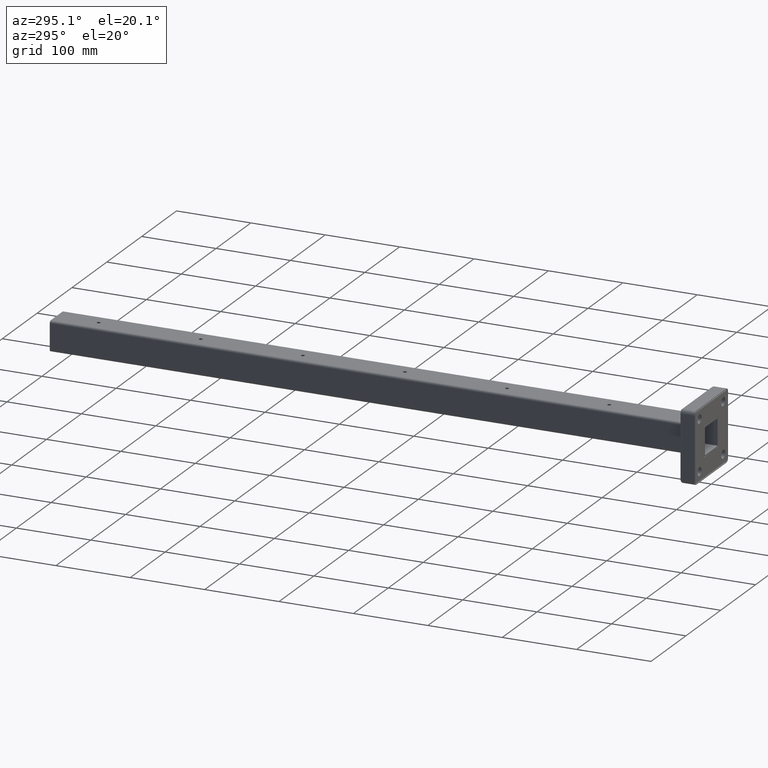
[diagram: clean part render]
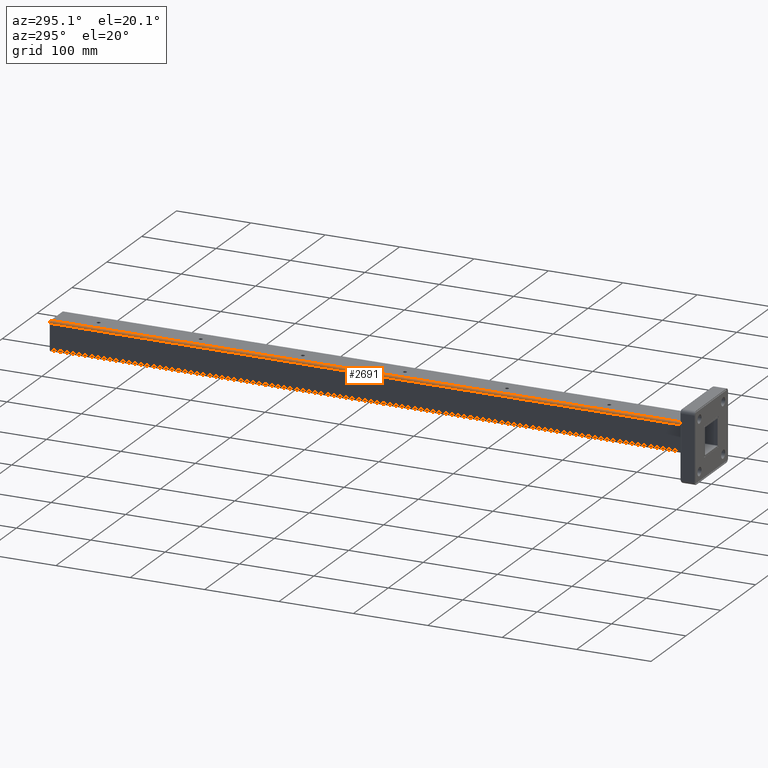
[diagram: same view with one face highlighted and labeled with its STEP entity id]
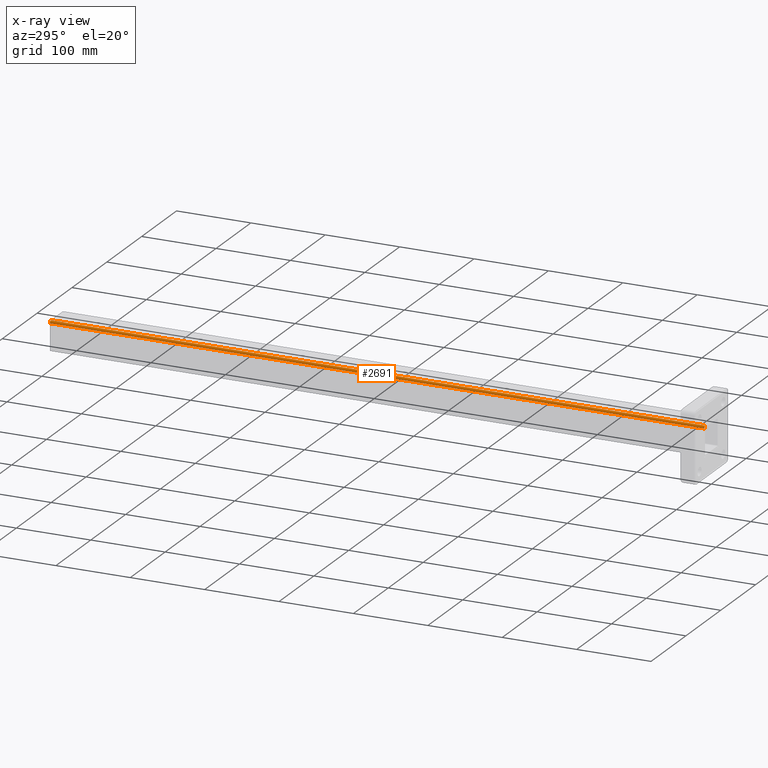
[diagram: x-ray of the same camera — body ghosted, the highlighted face saturated]
A machine part, auxiliary view. The second image highlights one B-rep face of the part: STEP entity #2691.
The next image is the same camera in x-ray: the body ghosted, the highlighted face saturated — about 0% of this face is hidden behind the body in this view.
In plain terms, the highlighted cylindrical surface (edge-blend (fillet) strip) has radius 3 mm, axis along (0, -1, 0).
Its self-contained STEP definition (entity closure, byte-faithful):
#45 = CARTESIAN_POINT ( 'NONE',  ( -19.99999999999999600, 880.0000000000000000, 17.00000000000000000 ) ) ;
#61 = ORIENTED_EDGE ( 'NONE', *, *, #1255, .F. ) ;
#237 = AXIS2_PLACEMENT_3D ( 'NONE', #3928, #1495, #2408 ) ;
#243 = AXIS2_PLACEMENT_3D ( 'NONE', #1009, #3196, #1663 ) ;
#490 = CARTESIAN_POINT ( 'NONE',  ( -16.99999999999999600, 880.0000000000000000, 19.99999999999999600 ) ) ;
#564 = VERTEX_POINT ( 'NONE', #814 ) ;
#632 = VECTOR ( 'NONE', #2880, 1000.000000000000000 ) ;
#663 = EDGE_CURVE ( 'NONE', #1210, #564, #3443, .T. ) ;
#814 = CARTESIAN_POINT ( 'NONE',  ( -19.99999999999999600, 0.0000000000000000000, 17.00000000000000000 ) ) ;
#825 = CARTESIAN_POINT ( 'NONE',  ( -16.99999999999999600, 880.0000000000000000, 19.99999999999999600 ) ) ;
#834 = CARTESIAN_POINT ( 'NONE',  ( -16.99999999999999600, 0.0000000000000000000, 19.99999999999999600 ) ) ;
#954 = LINE ( 'NONE', #490, #632 ) ;
#1009 = CARTESIAN_POINT ( 'NONE',  ( -16.99999999999999600, 880.0000000000000000, 16.99999999999999600 ) ) ;
#1210 = VERTEX_POINT ( 'NONE', #834 ) ;
#1239 = ORIENTED_EDGE ( 'NONE', *, *, #663, .F. ) ;
#1255 = EDGE_CURVE ( 'NONE', #564, #2117, #1702, .T. ) ;
#1355 = ORIENTED_EDGE ( 'NONE', *, *, #1908, .F. ) ;
#1446 = CARTESIAN_POINT ( 'NONE',  ( -19.99999999999999600, 880.0000000000000000, 17.00000000000000000 ) ) ;
#1484 = EDGE_CURVE ( 'NONE', #2117, #1554, #3437, .T. ) ;
#1495 = DIRECTION ( 'NONE',  ( -0.0000000000000000000, -1.000000000000000000, -0.0000000000000000000 ) ) ;
#1544 = CARTESIAN_POINT ( 'NONE',  ( -16.99999999999999600, 880.0000000000000000, 16.99999999999999600 ) ) ;
#1547 = DIRECTION ( 'NONE',  ( -0.0000000000000000000, 1.000000000000000000, -0.0000000000000000000 ) ) ;
#1554 = VERTEX_POINT ( 'NONE', #825 ) ;
#1663 = DIRECTION ( 'NONE',  ( 0.0000000000000000000, 0.0000000000000000000, -1.000000000000000000 ) ) ;
#1702 = LINE ( 'NONE', #45, #2193 ) ;
#1908 = EDGE_CURVE ( 'NONE', #1554, #1210, #954, .T. ) ;
#2091 = EDGE_LOOP ( 'NONE', ( #2233, #61, #1239, #1355 ) ) ;
#2117 = VERTEX_POINT ( 'NONE', #1446 ) ;
#2193 = VECTOR ( 'NONE', #1547, 1000.000000000000000 ) ;
#2233 = ORIENTED_EDGE ( 'NONE', *, *, #1484, .F. ) ;
#2329 = FACE_OUTER_BOUND ( 'NONE', #2091, .T. ) ;
#2408 = DIRECTION ( 'NONE',  ( 0.0000000000000000000, 0.0000000000000000000, 1.000000000000000000 ) ) ;
#2472 = CYLINDRICAL_SURFACE ( 'NONE', #243, 2.999999999999999100 ) ;
#2479 = DIRECTION ( 'NONE',  ( 0.0000000000000000000, 0.0000000000000000000, 1.000000000000000000 ) ) ;
#2691 = ADVANCED_FACE ( 'NONE', ( #2329 ), #2472, .T. ) ;
#2880 = DIRECTION ( 'NONE',  ( 0.0000000000000000000, -1.000000000000000000, 0.0000000000000000000 ) ) ;
#3196 = DIRECTION ( 'NONE',  ( 0.0000000000000000000, -1.000000000000000000, 0.0000000000000000000 ) ) ;
#3437 = CIRCLE ( 'NONE', #3624, 2.999999999999999100 ) ;
#3443 = CIRCLE ( 'NONE', #237, 2.999999999999999100 ) ;
#3624 = AXIS2_PLACEMENT_3D ( 'NONE', #1544, #3698, #2479 ) ;
#3698 = DIRECTION ( 'NONE',  ( 0.0000000000000000000, 1.000000000000000000, 0.0000000000000000000 ) ) ;
#3928 = CARTESIAN_POINT ( 'NONE',  ( -16.99999999999999600, 0.0000000000000000000, 16.99999999999999600 ) ) ;